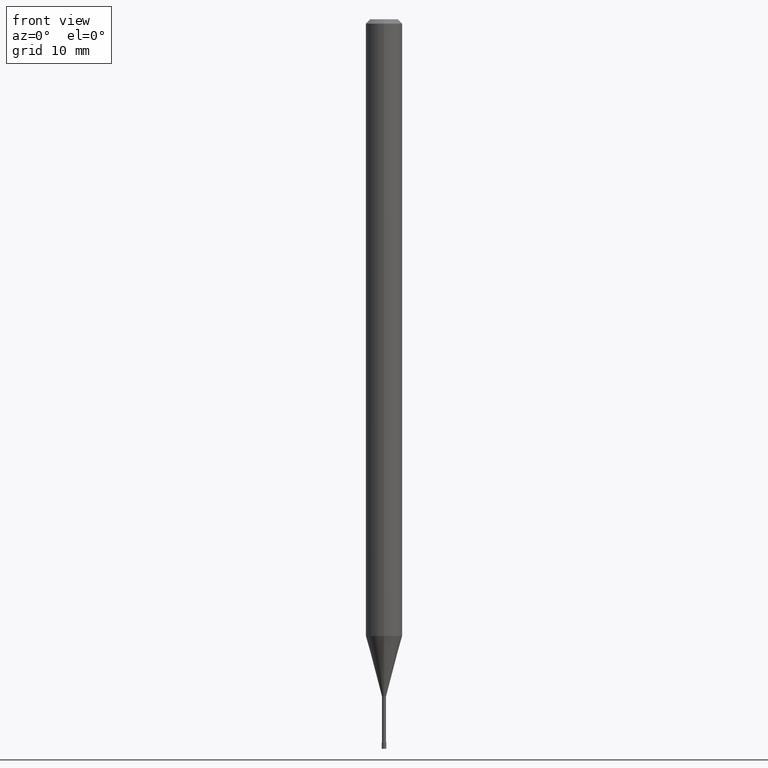
[diagram: clean part render]
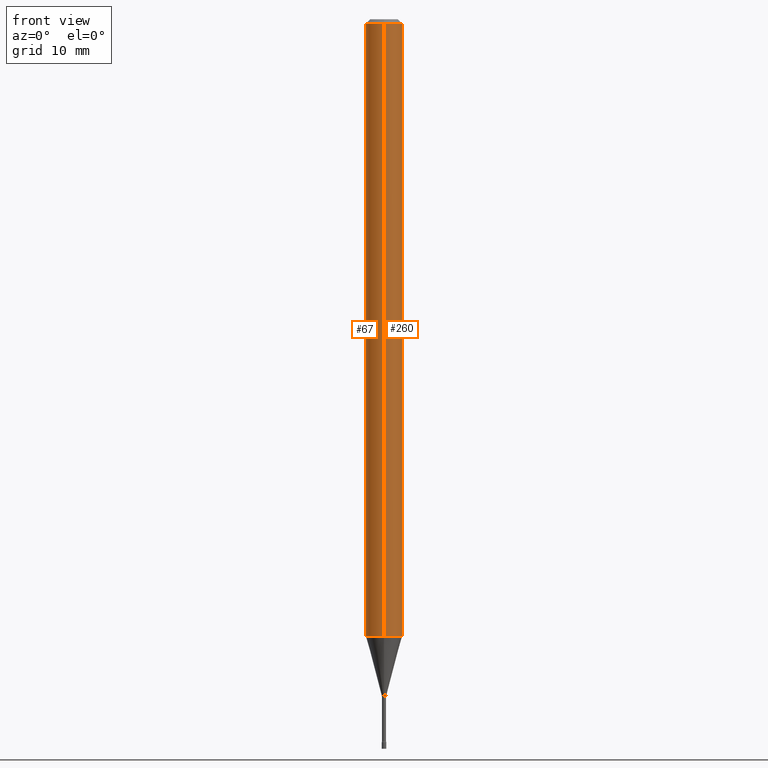
[diagram: same view with one multi-face feature highlighted, each face labeled with its STEP entity id]
A machine part, front view. The highlighted faces form ONE feature: a constant-radius fillet chain: 2 tangent blend faces with common blend radius 1.5875 mm. The faces share edges in the B-rep.
Their STEP definitions:
[1] entity #67 (Cylinder):
#16 = EDGE_LOOP ( 'NONE', ( #315, #212, #431, #70 ) ) ;
#67 = ADVANCED_FACE ( 'NONE', ( #267 ), #111, .T. ) ;
#68 = VERTEX_POINT ( 'NONE', #505 ) ;
#70 = ORIENTED_EDGE ( 'NONE', *, *, #475, .F. ) ;
#76 = CIRCLE ( 'NONE', #476, 0.06250000000000000000 ) ;
#111 = CYLINDRICAL_SURFACE ( 'NONE', #255, 0.06250000000000000000 ) ;
#163 = CIRCLE ( 'NONE', #486, 0.06250000000000000000 ) ;
#167 = EDGE_CURVE ( 'NONE', #343, #68, #76, .T. ) ;
#171 = CARTESIAN_POINT ( 'NONE',  ( 4.440892098501145824E-16, 0.06249999999999995143, -0.01500000000000024751 ) ) ;
#189 = DIRECTION ( 'NONE',  ( -2.445513339146382515E-29, 3.491417565107982719E-15, 1.000000000000000000 ) ) ;
#202 = EDGE_CURVE ( 'NONE', #68, #384, #362, .T. ) ;
#207 = EDGE_CURVE ( 'NONE', #343, #388, #284, .T. ) ;
#212 = ORIENTED_EDGE ( 'NONE', *, *, #167, .T. ) ;
#236 = DIRECTION ( 'NONE',  ( -2.445513339146382234E-29, 3.491417565107983114E-15, 1.000000000000000000 ) ) ;
#248 = VECTOR ( 'NONE', #236, 39.37007874015748143 ) ;
#255 = AXIS2_PLACEMENT_3D ( 'NONE', #273, #189, #351 ) ;
#257 = CARTESIAN_POINT ( 'NONE',  ( -4.364351673553912750E-16, -0.06250000000000005551, -0.01499999999999981209 ) ) ;
#261 = DIRECTION ( 'NONE',  ( -6.982962677686265922E-15, -1.000000000000000000, 3.483106191921935554E-15 ) ) ;
#267 = FACE_OUTER_BOUND ( 'NONE', #16, .T. ) ;
#273 = CARTESIAN_POINT ( 'NONE',  ( 0.000000000000000000, 0.000000000000000000, 0.000000000000000000 ) ) ;
#284 = LINE ( 'NONE', #407, #492 ) ;
#299 = DIRECTION ( 'NONE',  ( -2.445513339146382515E-29, 3.491417565107982719E-15, 1.000000000000000000 ) ) ;
#315 = ORIENTED_EDGE ( 'NONE', *, *, #207, .F. ) ;
#323 = DIRECTION ( 'NONE',  ( -2.445513339146382234E-29, 3.491417565107983114E-15, 1.000000000000000000 ) ) ;
#327 = DIRECTION ( 'NONE',  ( -2.445513339146382515E-29, 3.491417565107982719E-15, 1.000000000000000000 ) ) ;
#335 = CARTESIAN_POINT ( 'NONE',  ( 3.668270008719580866E-31, -5.237126347661984802E-17, -0.01500000000000003067 ) ) ;
#343 = VERTEX_POINT ( 'NONE', #371 ) ;
#351 = DIRECTION ( 'NONE',  ( -6.982962677686265922E-15, -1.000000000000000000, 3.491417565107982719E-15 ) ) ;
#362 = LINE ( 'NONE', #402, #248 ) ;
#371 = CARTESIAN_POINT ( 'NONE',  ( 4.440892098501140893E-16, 0.06249999999999262396, -2.113057782720306310 ) ) ;
#384 = VERTEX_POINT ( 'NONE', #257 ) ;
#388 = VERTEX_POINT ( 'NONE', #171 ) ;
#402 = CARTESIAN_POINT ( 'NONE',  ( -4.364351673553916201E-16, -0.06250000000000000000, 2.182135978192489199E-16 ) ) ;
#407 = CARTESIAN_POINT ( 'NONE',  ( 4.440892098500625669E-16, 0.06250000000000000000, -2.182135978192489199E-16 ) ) ;
#431 = ORIENTED_EDGE ( 'NONE', *, *, #202, .T. ) ;
#475 = EDGE_CURVE ( 'NONE', #388, #384, #163, .T. ) ;
#476 = AXIS2_PLACEMENT_3D ( 'NONE', #481, #327, #485 ) ;
#481 = CARTESIAN_POINT ( 'NONE',  ( 5.167510994029587230E-29, -7.377567058677804661E-15, -2.113057782720306310 ) ) ;
#485 = DIRECTION ( 'NONE',  ( -6.982962677686265922E-15, -1.000000000000000000, 4.370956789862821150E-15 ) ) ;
#486 = AXIS2_PLACEMENT_3D ( 'NONE', #335, #299, #261 ) ;
#492 = VECTOR ( 'NONE', #323, 39.37007874015748143 ) ;
#505 = CARTESIAN_POINT ( 'NONE',  ( -4.364351673553399990E-16, -0.06250000000000736911, -2.113057782720305866 ) ) ;
[2] entity #260 (Cylinder):
#2 = DIRECTION ( 'NONE',  ( -2.445513339146382515E-29, 3.491417565107982719E-15, 1.000000000000000000 ) ) ;
#23 = EDGE_CURVE ( 'NONE', #384, #388, #41, .T. ) ;
#41 = CIRCLE ( 'NONE', #346, 0.06250000000000000000 ) ;
#46 = DIRECTION ( 'NONE',  ( -2.445513339146382515E-29, 3.491417565107982719E-15, 1.000000000000000000 ) ) ;
#49 = DIRECTION ( 'NONE',  ( -6.982962677686265922E-15, -1.000000000000000000, 3.491417565107982719E-15 ) ) ;
#58 = DIRECTION ( 'NONE',  ( -2.445513339146382515E-29, 3.491417565107982719E-15, 1.000000000000000000 ) ) ;
#68 = VERTEX_POINT ( 'NONE', #505 ) ;
#81 = ORIENTED_EDGE ( 'NONE', *, *, #202, .F. ) ;
#152 = EDGE_LOOP ( 'NONE', ( #461, #466, #182, #81 ) ) ;
#171 = CARTESIAN_POINT ( 'NONE',  ( 4.440892098501145824E-16, 0.06249999999999995143, -0.01500000000000024751 ) ) ;
#182 = ORIENTED_EDGE ( 'NONE', *, *, #23, .F. ) ;
#195 = FACE_OUTER_BOUND ( 'NONE', #152, .T. ) ;
#202 = EDGE_CURVE ( 'NONE', #68, #384, #362, .T. ) ;
#207 = EDGE_CURVE ( 'NONE', #343, #388, #284, .T. ) ;
#236 = DIRECTION ( 'NONE',  ( -2.445513339146382234E-29, 3.491417565107983114E-15, 1.000000000000000000 ) ) ;
#248 = VECTOR ( 'NONE', #236, 39.37007874015748143 ) ;
#257 = CARTESIAN_POINT ( 'NONE',  ( -4.364351673553912750E-16, -0.06250000000000005551, -0.01499999999999981209 ) ) ;
#260 = ADVANCED_FACE ( 'NONE', ( #195 ), #409, .T. ) ;
#284 = LINE ( 'NONE', #407, #492 ) ;
#287 = CARTESIAN_POINT ( 'NONE',  ( 5.167510994029587230E-29, -7.377567058677804661E-15, -2.113057782720306310 ) ) ;
#323 = DIRECTION ( 'NONE',  ( -2.445513339146382234E-29, 3.491417565107983114E-15, 1.000000000000000000 ) ) ;
#330 = EDGE_CURVE ( 'NONE', #68, #343, #425, .T. ) ;
#332 = CARTESIAN_POINT ( 'NONE',  ( 3.668270008719580866E-31, -5.237126347661984802E-17, -0.01500000000000003067 ) ) ;
#343 = VERTEX_POINT ( 'NONE', #371 ) ;
#346 = AXIS2_PLACEMENT_3D ( 'NONE', #332, #58, #376 ) ;
#357 = AXIS2_PLACEMENT_3D ( 'NONE', #364, #2, #49 ) ;
#362 = LINE ( 'NONE', #402, #248 ) ;
#364 = CARTESIAN_POINT ( 'NONE',  ( 0.000000000000000000, 0.000000000000000000, 0.000000000000000000 ) ) ;
#371 = CARTESIAN_POINT ( 'NONE',  ( 4.440892098501140893E-16, 0.06249999999999262396, -2.113057782720306310 ) ) ;
#376 = DIRECTION ( 'NONE',  ( -6.982962677686265922E-15, -1.000000000000000000, 3.483106191921935554E-15 ) ) ;
#384 = VERTEX_POINT ( 'NONE', #257 ) ;
#388 = VERTEX_POINT ( 'NONE', #171 ) ;
#402 = CARTESIAN_POINT ( 'NONE',  ( -4.364351673553916201E-16, -0.06250000000000000000, 2.182135978192489199E-16 ) ) ;
#407 = CARTESIAN_POINT ( 'NONE',  ( 4.440892098500625669E-16, 0.06250000000000000000, -2.182135978192489199E-16 ) ) ;
#409 = CYLINDRICAL_SURFACE ( 'NONE', #357, 0.06250000000000000000 ) ;
#411 = AXIS2_PLACEMENT_3D ( 'NONE', #287, #46, #440 ) ;
#425 = CIRCLE ( 'NONE', #411, 0.06250000000000000000 ) ;
#440 = DIRECTION ( 'NONE',  ( -6.982962677686265922E-15, -1.000000000000000000, 4.370956789862821150E-15 ) ) ;
#461 = ORIENTED_EDGE ( 'NONE', *, *, #330, .T. ) ;
#466 = ORIENTED_EDGE ( 'NONE', *, *, #207, .T. ) ;
#492 = VECTOR ( 'NONE', #323, 39.37007874015748143 ) ;
#505 = CARTESIAN_POINT ( 'NONE',  ( -4.364351673553399990E-16, -0.06250000000000736911, -2.113057782720305866 ) ) ;